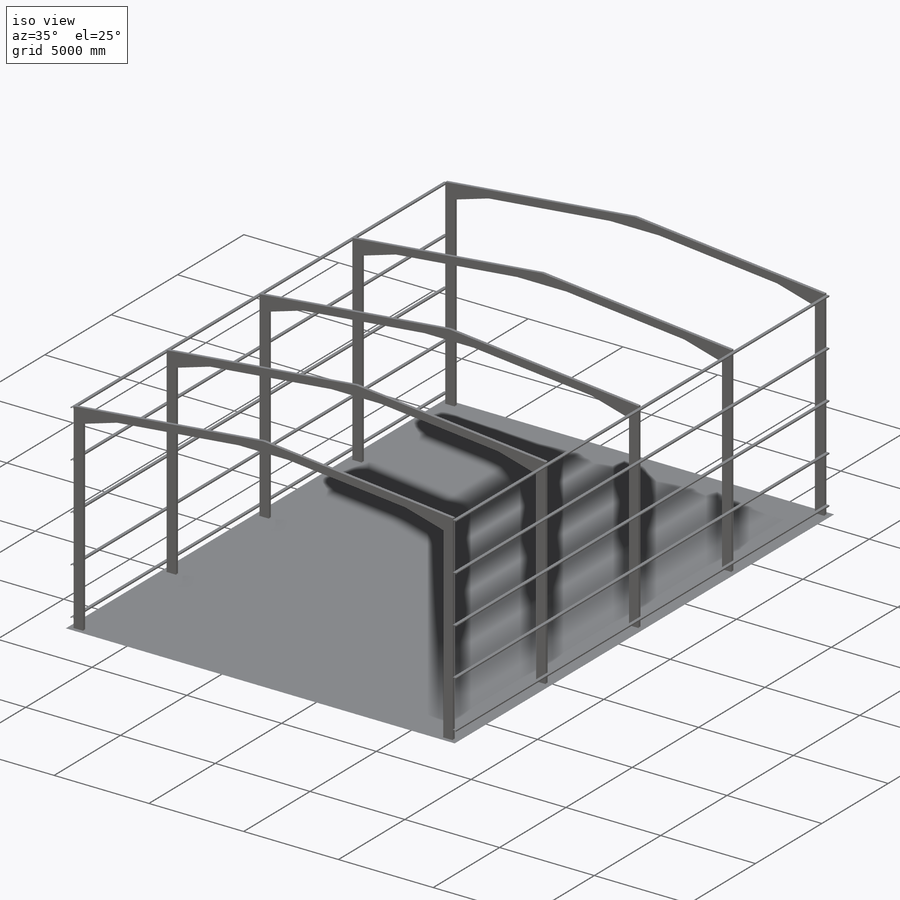
[diagram: iso view]
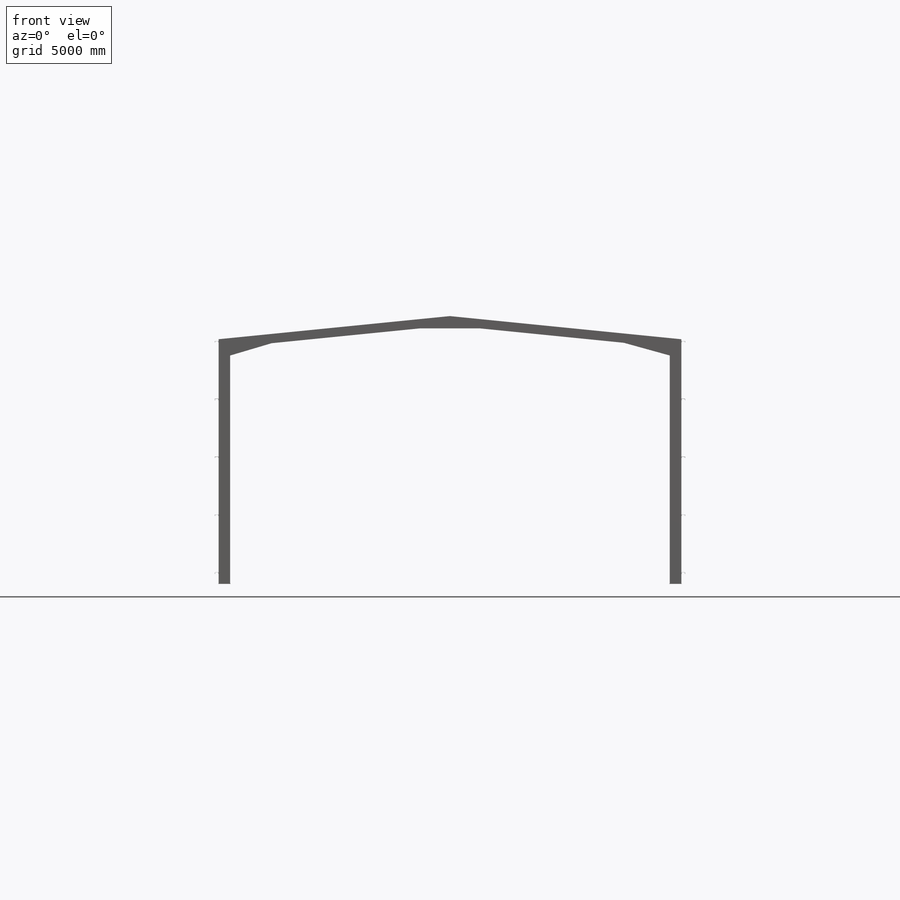
[diagram: front view]
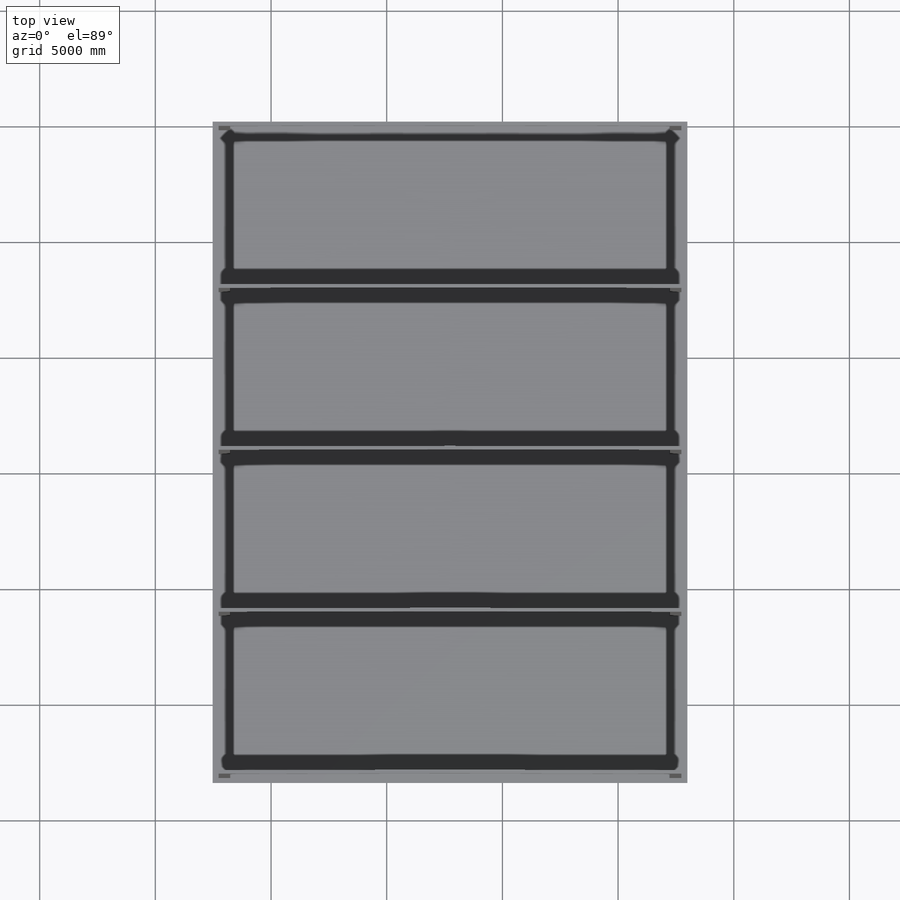
[diagram: top view]
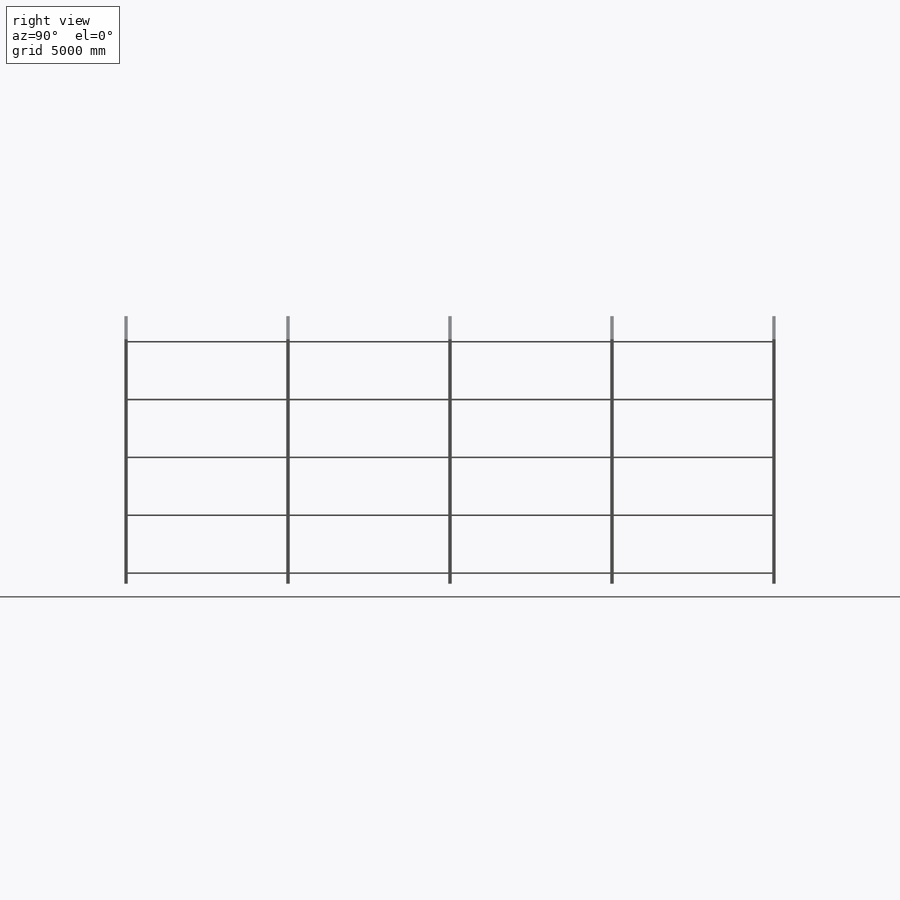
[diagram: right view]
SOLIDWORKS PART (.sldprt)
format: sldprt  version: not decoded by parser v0  size: 5,477,888 bytes
history: native  units: mm
features: sketch x46, extrude x3, plane x2, pattern_linear x2, material x1, mirror x1 (+15 scaffold rows collapsed)
feature tree (70):
  scaffold x15  (default folders/planes/origin — collapsed)
  material  "Material <not specified>"
  plane  " "
  sketch  "Sketch1"
  sketch  "IPE180_2"
  sketch  "IPE180_3"
  sketch  "Vkota-gd_4"
  sketch  "Vkota-gd_5"
  sketch  "Vkota-gd_6"
  sketch  "UNP160_7"
  sketch  "UNP160_8"
  sketch  "UNP160_9"
  sketch  "UNP160_10"
  sketch  "UNP300_11"
  sketch  "UNP160_12"
  sketch  "UNP200_13"
  sketch  "UNP200_14"
  sketch  "vitlo"
  sketch  "IPE500_16"
  sketch  "UNP300_17"
  sketch  "IPE180_18"
  sketch  "IPE180_19"
  sketch  "UNP160_25"
  sketch  "UNP160_26"
  sketch  "UNP160_27"
  sketch  "UNP160_28"
  sketch  "UNP160_29"
  sketch  "UNP200_32"
  sketch  "UNP200_33"
  sketch  "oo h"
  sketch  "A$C0EF406AC"
  sketch  "VISKOTA_35"
  sketch  "VISKOTA_36"
  sketch  "VISKOTA_37"
  sketch  "VISKOTA_38"
  sketch  "VISKOTA_39"
  sketch  "VISKOTA_40"
  sketch  "oo h_41"
  sketch  "VISKOTA_42"
  sketch  "VISKOTA_43"
  sketch  "VISKOTA_44"
  sketch  "VISKOTA_45"
  sketch  "VISKOTA_46"
  sketch  "VISKOTA_47"
  sketch  "VRATA-izgled_48"
  sketch  "VISKOTA_49"  dims[D1=1000.0mm D2=750.0mm D3=750.0mm D4=850.0mm D5=8775.0mm D6=~1300.040672mm D7=2150.0mm D8=500.0mm D9=2500.0mm D10=2500.0mm D11=2500.0mm D12=~10600.040672mm D13=6000.0mm D14=7500.0mm D15=9100.0mm D16=2500.0mm D17=2500.0mm D18=~100.040672mm D19=975.0mm D20=8000.0mm D21=400.0mm D22=1250.0mm D23=6000.0mm D24=525.0mm D25=100.0mm D26=~10746.266769mm D27=~1040.220543mm D28=19500.0mm D29=200.0mm D30=~34.414214mm D31=~10354.087075mm D32=~3908.655587mm D33=200.0mm D34=130.0mm D35=200.0mm D36=~4109.599129mm D37=101.0mm]
  sketch  "Sketch55"  dims[D1=500.0mm]
  extrude  "Extrude3"  Depth=150mm
  sketch  "Sketch56"
  extrude  "Extrude4"  Depth=28150mm
  pattern_linear  "LPattern1"  Count1=5 Count2=1 Spacing1=2500mm Spacing2=10mm
  plane  "Plane2"
  mirror  "Mirror1"
  pattern_linear  "LPattern2"  Count1=5 Count2=1 Spacing1=7000mm Spacing2=10mm
  sketch  "Sketch57"
  extrude  "Extrude5"  Depth=1mm
decode coverage: 7 of 52 modeling features carry decoded parameters
note: ~ marks probable driven/reference dimensions
note: suppression state not decoded; provenance and decode notes live in map.json
